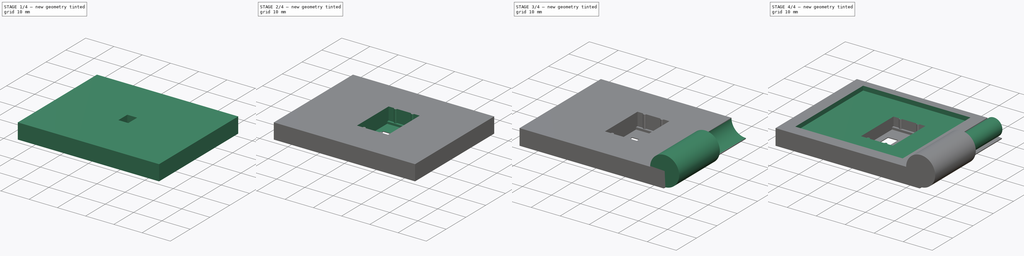
[diagram: build sequence overview — one tinted view per stage of 4, left to right]
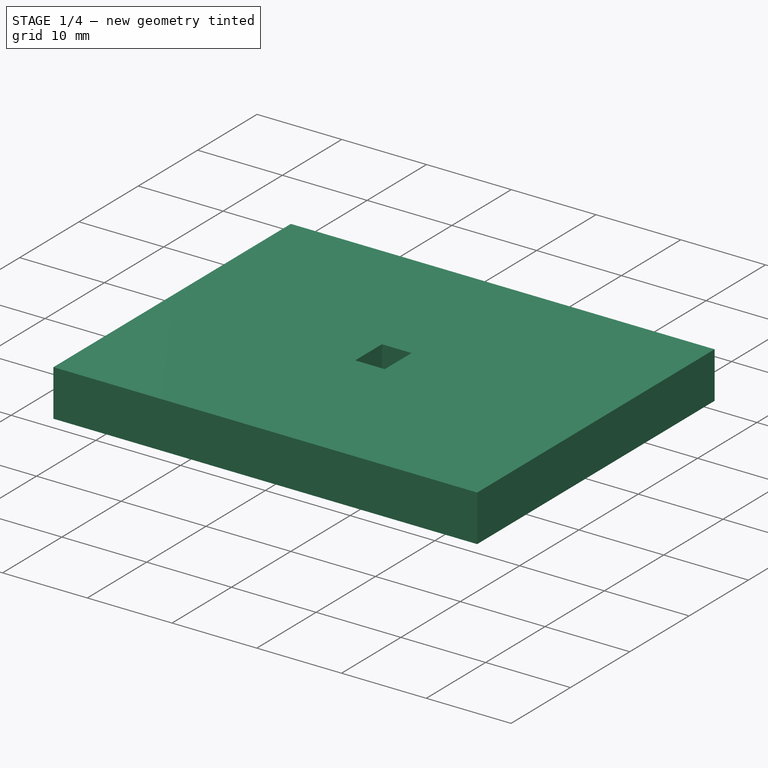
[diagram: stage 1 of 4 — iso view after this stage's code; geometry added in this stage tinted green]
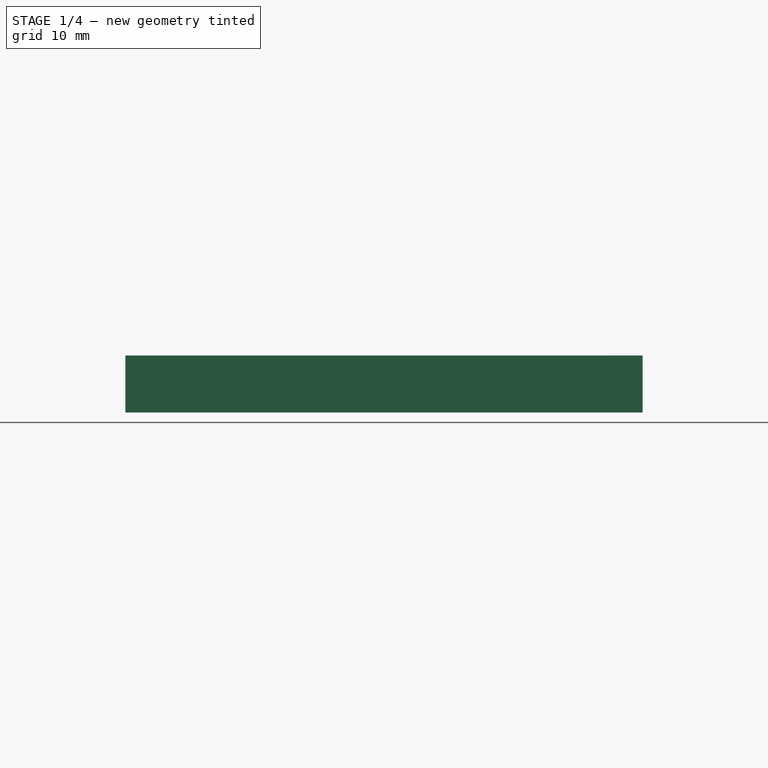
[diagram: stage 1 of 4 — front view after this stage's code; geometry added in this stage tinted green]
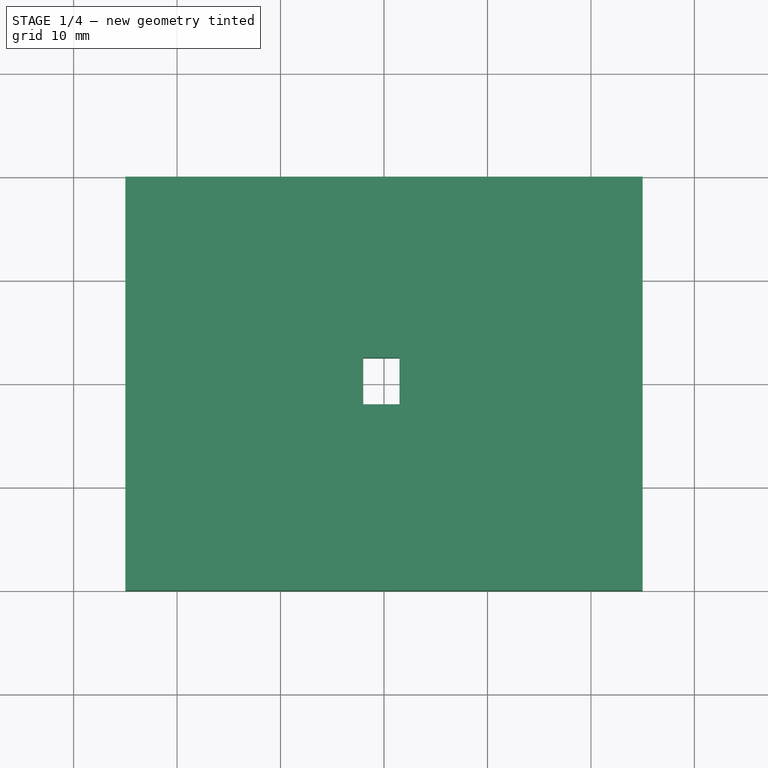
[diagram: stage 1 of 4 — top view after this stage's code; geometry added in this stage tinted green]
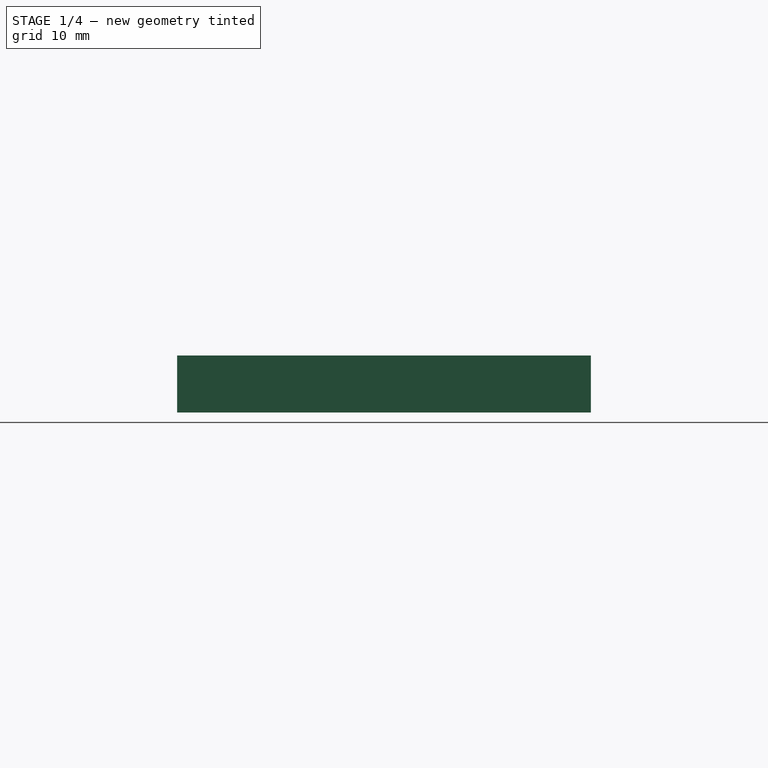
[diagram: stage 1 of 4 — right view after this stage's code; geometry added in this stage tinted green]
FCSTD DOCUMENT  (FreeCAD 0.20R29177 (Git))
Label: Design04
License: All rights reserved
LicenseURL: http://en.wikipedia.org/wiki/All_rights_reserved
objects: Sketcher::SketchObject×9, PartDesign::Pocket×4, PartDesign::Pad×3, PartDesign::Hole×1, PartDesign::Fillet×1, PartDesign::Body×1
note: 28 computed .brp shape members not serialized (recipe doc carries the construction recipe); baked Part::Feature solids carry a one-line shape summary decoded from their .brp

FEATURE [Sketcher::SketchObject] Sketch
  FullyConstrained = false
  MapMode = 5
  Support = -> [XY_Plane]
  sketch-geometry (4):
    g0: LineSegment StartX=-25 StartY=20 StartZ=0 EndX=25 EndY=20 EndZ=0
    g1: LineSegment StartX=25 StartY=20 StartZ=0 EndX=25 EndY=-20 EndZ=0
    g2: LineSegment StartX=25 StartY=-20 StartZ=0 EndX=-25 EndY=-20 EndZ=0
    g3: LineSegment StartX=-25 StartY=-20 StartZ=0 EndX=-25 EndY=20 EndZ=0
  constraints (10):
    c: Coincident(g0,g1)
    c: Coincident(g1,g2)
    c: Coincident(g2,g3)
    c: Coincident(g3,g0)
    c: Horizontal(g2)
    c: Vertical(g1)
    c: DistanceX(g0,g0) = 50
    c: DistanceY(g3,g3) = 40
    c: Symmetric(g0,g0,g-2)
    c: Symmetric(g0,g2,g-1)
FEATURE [PartDesign::Pad] Pad
  AllowMultiFace = false
  Direction = (1,1,1)
  Length = 5.5
  Length2 = 100
  Profile = -> Sketch
  Type = 0
FEATURE [Sketcher::SketchObject] Sketch004
  FullyConstrained = false
  MapMode = 5
  Placement = pos=(0,0,5.5) rot=(0,0,1;0rad)
  Support = -> [Pad]
  sketch-geometry (5):
    g0: LineSegment StartX=-2 StartY=2.5 StartZ=0 EndX=1.5 EndY=2.5 EndZ=0
    g1: LineSegment StartX=1.5 StartY=2.5 StartZ=0 EndX=1.5 EndY=-2 EndZ=0
    g2: LineSegment StartX=1.5 StartY=-2 StartZ=0 EndX=-2 EndY=-2 EndZ=0
    g3: LineSegment StartX=-2 StartY=-2 StartZ=0 EndX=-2 EndY=2.5 EndZ=0
    g4: GeomPoint X=0 Y=0 Z=0
  constraints (13):
    c: Coincident(g0,g1)
    c: Coincident(g1,g2)
    c: Coincident(g2,g3)
    c: Coincident(g3,g0)
    c: Horizontal(g2)
    c: Vertical(g1)
    c: DistanceX(g0,g0) = 3.5
    c: DistanceY(g1,g1) = 4.5
    c: Coincident(g-1,g4)
    c: Vertical(g3)
    c: DistanceX(g0,g4) = 2
    c: DistanceY(g1,g4) = 2
    c: Horizontal(g0)
FEATURE [PartDesign::Pocket] Pocket  label="DisplayActive"
  AllowMultiFace = false
  BaseFeature = -> Pad
  Direction = (1,1,1)
  Length = 5
  Length2 = 100
  Profile = -> Sketch004
  Type = 1
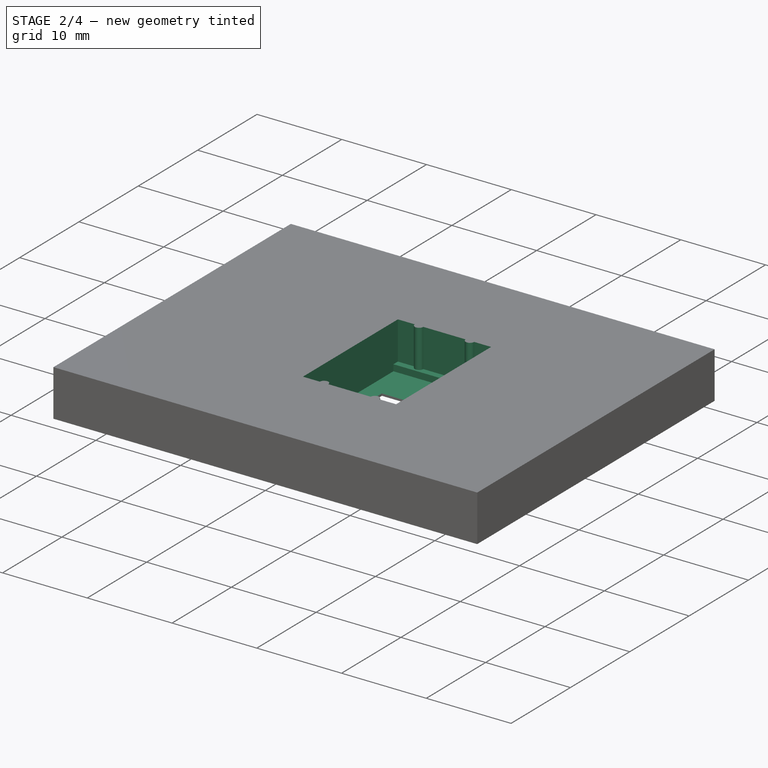
[diagram: stage 2 of 4 — iso view after this stage's code; geometry added in this stage tinted green]
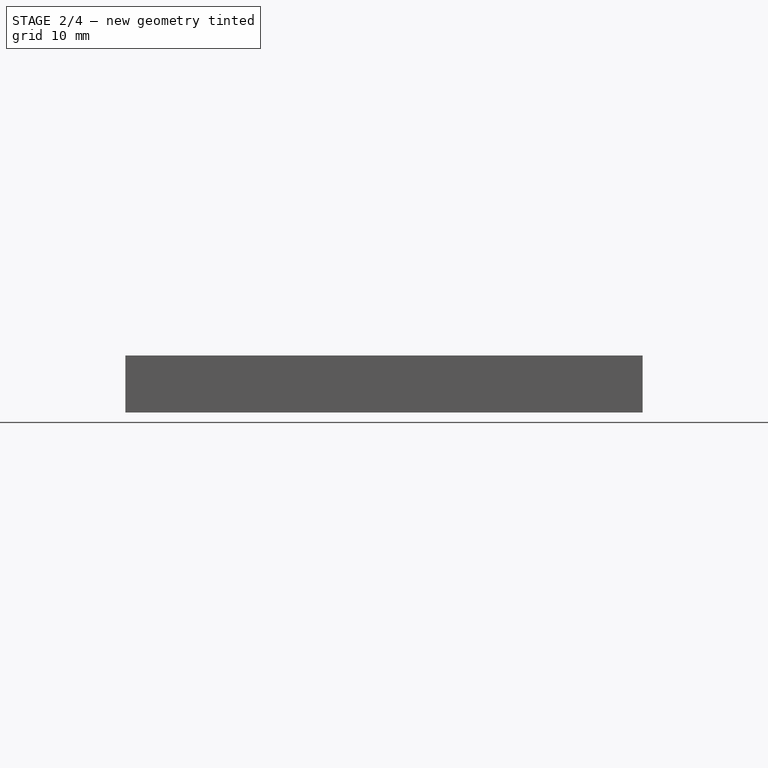
[diagram: stage 2 of 4 — front view after this stage's code; geometry added in this stage tinted green]
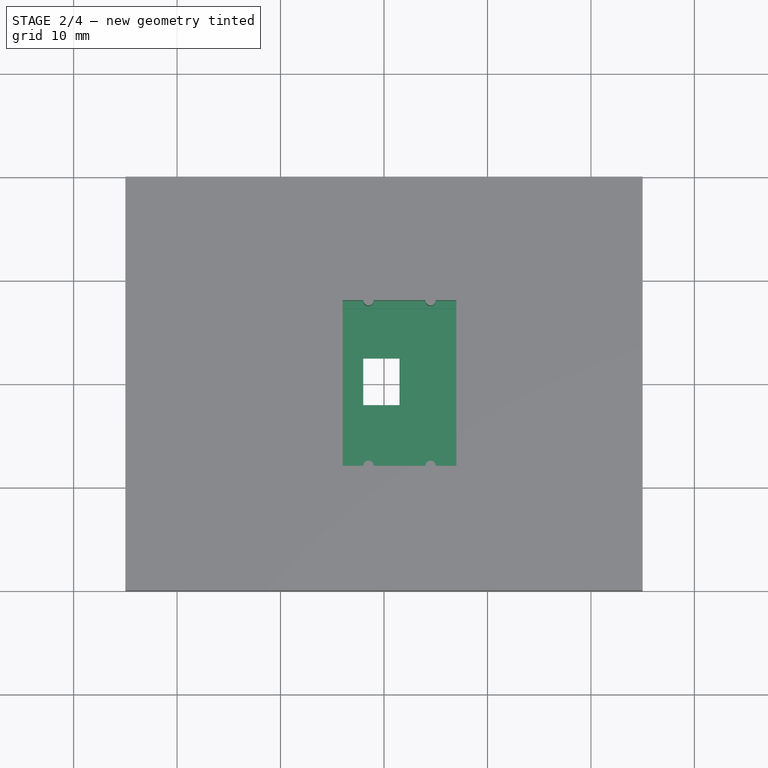
[diagram: stage 2 of 4 — top view after this stage's code; geometry added in this stage tinted green]
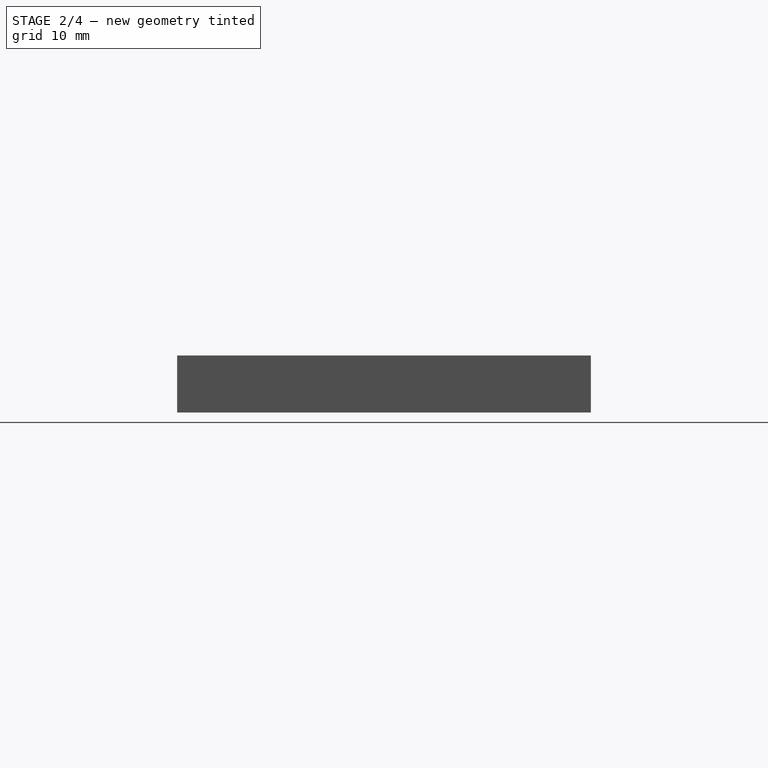
[diagram: stage 2 of 4 — right view after this stage's code; geometry added in this stage tinted green]
FEATURE [Sketcher::SketchObject] Sketch005
  ExternalGeometry = -> [Sketch004]
  FullyConstrained = false
  MapMode = 5
  Placement = pos=(0,0,5.5) rot=(0,0,1;0rad)
  Support = -> [Pocket]
  sketch-geometry (4):
    g0: LineSegment StartX=-4 StartY=7.3 StartZ=0 EndX=7 EndY=7.3 EndZ=0
    g1: LineSegment StartX=7 StartY=7.3 StartZ=0 EndX=7 EndY=-6.7 EndZ=0
    g2: LineSegment StartX=7 StartY=-6.7 StartZ=0 EndX=-4 EndY=-6.7 EndZ=0
    g3: LineSegment StartX=-4 StartY=-6.7 StartZ=0 EndX=-4 EndY=7.3 EndZ=0
  constraints (12):
    c: Coincident(g0,g1)
    c: Coincident(g1,g2)
    c: Coincident(g2,g3)
    c: Coincident(g3,g0)
    c: Horizontal(g0)
    c: Horizontal(g2)
    c: Vertical(g1)
    c: Vertical(g3)
    c: DistanceX(g2,g2) = 11
    c: DistanceY(g1,g1) = 14
    c: DistanceX(g2,g-4) = 2
    c: DistanceY(g-4,g0) = 4.8
FEATURE [PartDesign::Pocket] Pocket001  label="DisplayFull"
  AllowMultiFace = false
  BaseFeature = -> Pocket
  Direction = (1,1,1)
  Length = 5.25
  Length2 = 100
  Profile = -> Sketch005
  Type = 0
FEATURE [Sketcher::SketchObject] Sketch006
  FullyConstrained = true
  MapMode = 5
  Placement = pos=(0,0,5.5) rot=(0,0,1;0rad)
  Support = -> [Pocket001]
FEATURE [Sketcher::SketchObject] Sketch007
  ExternalGeometry = -> [Pocket001]
  FullyConstrained = false
  MapMode = 5
  Placement = pos=(0,0,5.5) rot=(0,0,1;0rad)
  Support = -> [Pocket001]
  sketch-geometry (12):
    g0: LineSegment StartX=-4 StartY=8.05 StartZ=0 EndX=-2 EndY=8.05 EndZ=0
    g1: LineSegment StartX=7 StartY=8.05 StartZ=0 EndX=7 EndY=-7.95 EndZ=0
    g2: LineSegment StartX=7 StartY=-7.95 StartZ=0 EndX=4.9999 EndY=-7.95 EndZ=0
    g3: LineSegment StartX=-4 StartY=-7.95 StartZ=0 EndX=-4 EndY=8.05 EndZ=0
    g4: ArcOfCircle CenterX=-1.5 CenterY=-7.95043 CenterZ=0 NormalX=0 NormalY=0 NormalZ=1 AngleXU=0 Radius=0.5 StartAngle=0.000859488 EndAngle=3.14073
    g5: ArcOfCircle CenterX=4.5 CenterY=-7.95995 CenterZ=0 NormalX=0 NormalY=0 NormalZ=1 AngleXU=0 Radius=0.5 StartAngle=0.0199025 EndAngle=3.12169
    g6: LineSegment StartX=-2 StartY=-7.95 StartZ=0 EndX=-4 EndY=-7.95 EndZ=0
    g7: LineSegment StartX=4.0001 StartY=-7.95 StartZ=0 EndX=-1 EndY=-7.95 EndZ=0
    g8: ArcOfCircle CenterX=-1.5 CenterY=8.05005 CenterZ=0 NormalX=0 NormalY=0 NormalZ=1 AngleXU=0 Radius=0.5 StartAngle=3.14169 EndAngle=6.28309
    g9: ArcOfCircle CenterX=4.5 CenterY=8.04996 CenterZ=0 NormalX=0 NormalY=0 NormalZ=1 AngleXU=0 Radius=0.5 StartAngle=3.14151 EndAngle=6.28327
    g10: LineSegment StartX=-1 StartY=8.05 StartZ=0 EndX=4 EndY=8.05 EndZ=0
    g11: LineSegment StartX=5 StartY=8.05 StartZ=0 EndX=7 EndY=8.05 EndZ=0
  constraints (34):
    c: Coincident(g11,g1)
    c: Coincident(g1,g2)
    c: Coincident(g6,g3)
    c: Coincident(g3,g0)
    c: Horizontal(g0)
    c: Horizontal(g2)
    c: Vertical(g1)
    c: Vertical(g3)
    c: DistanceX(g3,g11) = 11
    c: DistanceX(g3,g-3) = 0
    c: DistanceY(g1,g1) = 16
    c: DistanceY(g3,g-4) = 1.25
    c: Radius(g4) = 0.5
    c: Radius(g5) = 0.5
    c: DistanceX(g3,g4) = 2.5
    c: DistanceX(g5,g1) = 2.5
    c: Coincident(g7,g4)
    c: Coincident(g6,g4)
    c: Tangent(g2,g6)
    c: Coincident(g2,g5)
    c: Coincident(g7,g5)
    c: Tangent(g2,g7)
    c: Radius(g8) = 0.5
    c: Radius(g9) = 0.5
    c: DistanceX(g3,g8) = 2.5
    c: DistanceX(g9,g11) = 2.5
    c: PointOnObject(g9,g0)
    c: PointOnObject(g9,g0)
    c: Coincident(g0,g8)
    c: Coincident(g10,g8)
    c: Tangent(g0,g10)
    c: PointOnObject(g10,g9)
    c: PointOnObject(g11,g9)
    c: Tangent(g10,g11)
FEATURE [PartDesign::Pocket] Pocket002  label="DisplayPCB"
  AllowMultiFace = false
  BaseFeature = -> Pocket001
  Direction = (1,1,1)
  Length = 4.5
  Length2 = 100
  Profile = -> Sketch007
  Type = 0
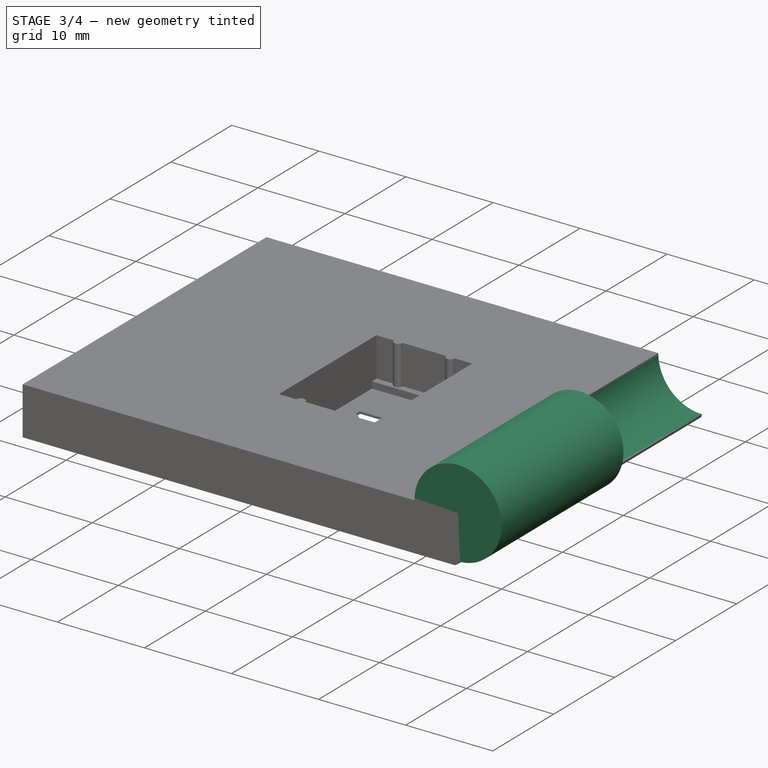
[diagram: stage 3 of 4 — iso view after this stage's code; geometry added in this stage tinted green]
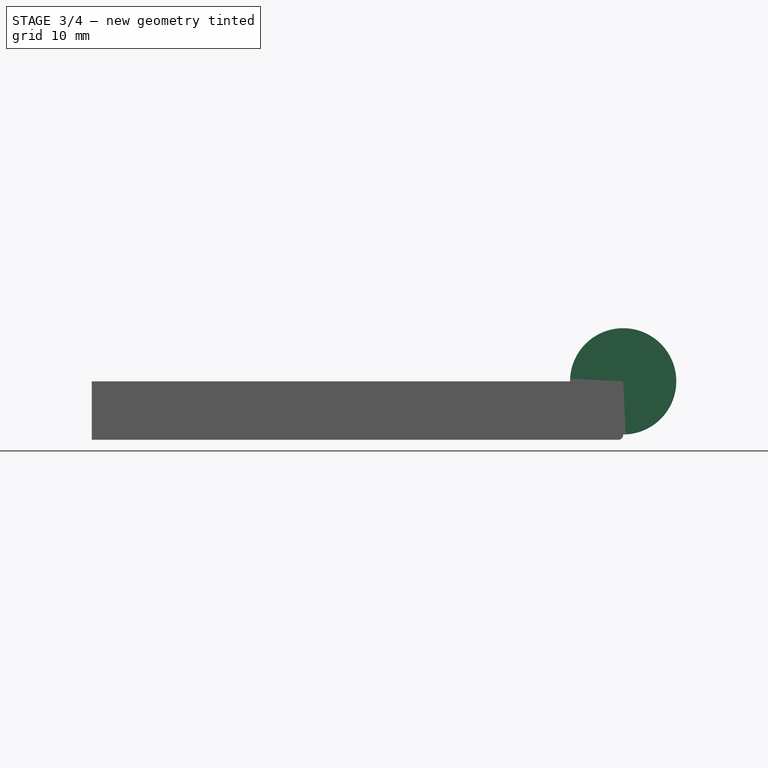
[diagram: stage 3 of 4 — front view after this stage's code; geometry added in this stage tinted green]
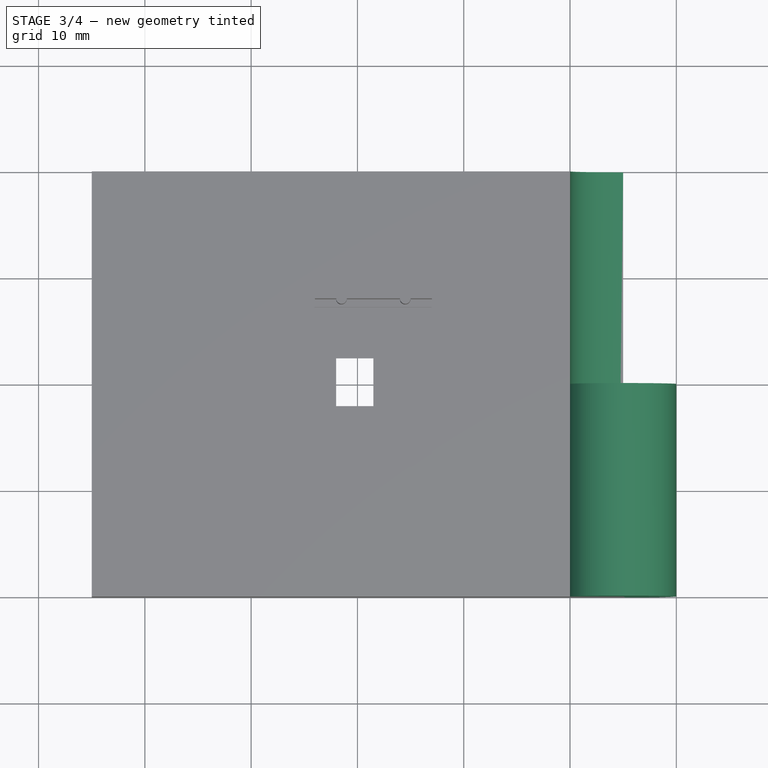
[diagram: stage 3 of 4 — top view after this stage's code; geometry added in this stage tinted green]
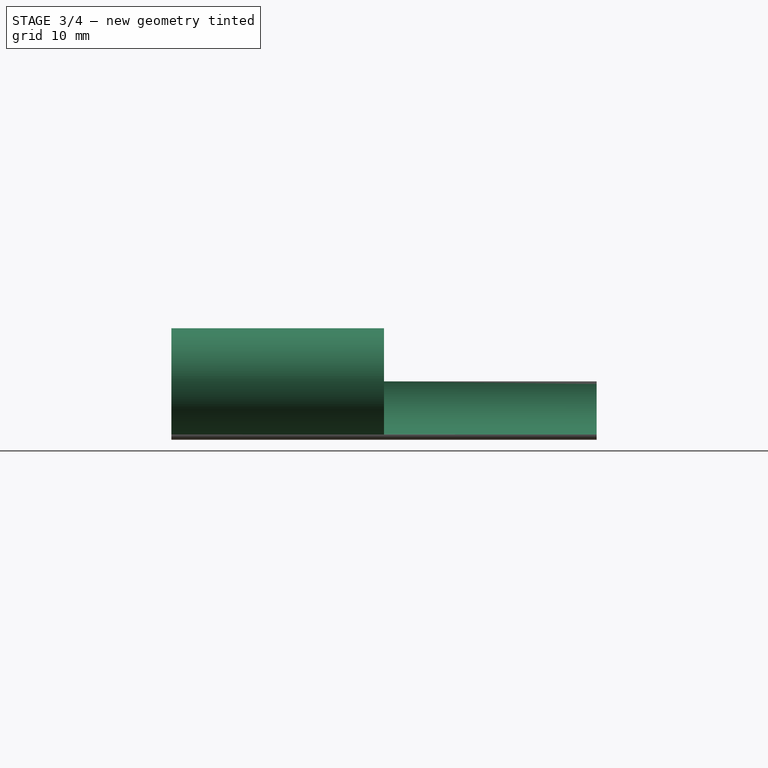
[diagram: stage 3 of 4 — right view after this stage's code; geometry added in this stage tinted green]
FEATURE [Sketcher::SketchObject] Sketch008
  ExternalGeometry = -> [Pocket002]
  FullyConstrained = false
  MapMode = 5
  Placement = pos=(0,-20,0) rot=(1,0,0;1.5708rad)
  Support = -> [Pocket002]
  sketch-geometry (1):
    g0: Circle CenterX=25 CenterY=5.5 CenterZ=0 NormalX=0 NormalY=0 NormalZ=1 AngleXU=0 Radius=5
  constraints (2):
    c: Coincident(g0,g-4)
    c: Radius(g0) = 5
FEATURE [PartDesign::Pad] Pad001  label="HingeMain"
  AllowMultiFace = false
  BaseFeature = -> Pocket002
  Direction = (1,1,1)
  Length = 20
  Length2 = 100
  Profile = -> Sketch008
  Reversed = true
  Type = 0
FEATURE [Sketcher::SketchObject] Sketch009
  ExternalGeometry = -> [Pad001]
  FullyConstrained = false
  MapMode = 5
  Placement = pos=(0,20,0) rot=(0,0.707107,0.707107;3.14159rad)
  Support = -> [Pad001]
  sketch-geometry (1):
    g0: Circle CenterX=-25 CenterY=5.5 CenterZ=0 NormalX=0 NormalY=0 NormalZ=1 AngleXU=0 Radius=5
  constraints (2):
    c: Coincident(g0,g-5)
    c: Radius(g0) = 5
FEATURE [PartDesign::Hole] Hole  label="HingeHole"
  AllowMultiFace = false
  BaseFeature = -> Pad001
  CustomThreadClearance = 0
  Depth = 20
  DepthType = 0
  Diameter = 10
  DrillForDepth = false
  DrillPoint = 0
  DrillPointAngle = 118
  HoleCutCountersinkAngle = 90
  HoleCutCustomValues = false
  HoleCutDepth = 0
  HoleCutDiameter = 0
  HoleCutType = 0
  ModelThread = false
  Profile = -> Sketch009
  Tapered = false
  TaperedAngle = 90
  ThreadClass = 0
  ThreadDepth = 20
  ThreadDepthType = 0
  ThreadDirection = 0
  ThreadFit = 0
  ThreadSize = 0
  ThreadType = 0
  Threaded = false
  UseCustomThreadClearance = false
FEATURE [PartDesign::Fillet] Fillet
  Base = -> Hole [Edge7]
  BaseFeature = -> Hole
  Radius = 0.45
  SupportTransform = false
  UseAllEdges = false
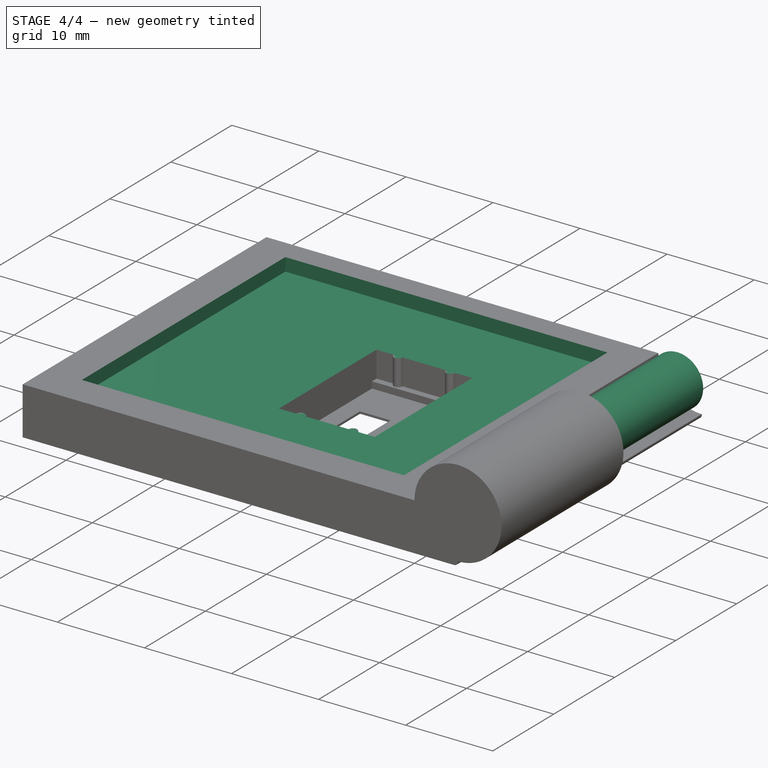
[diagram: stage 4 of 4 — iso view after this stage's code; geometry added in this stage tinted green]
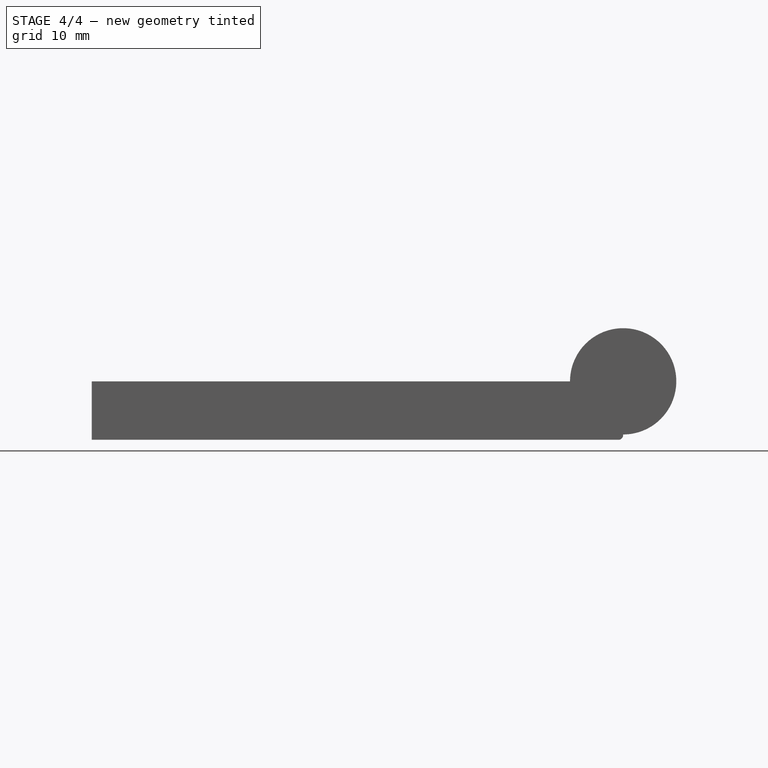
[diagram: stage 4 of 4 — front view after this stage's code; geometry added in this stage tinted green]
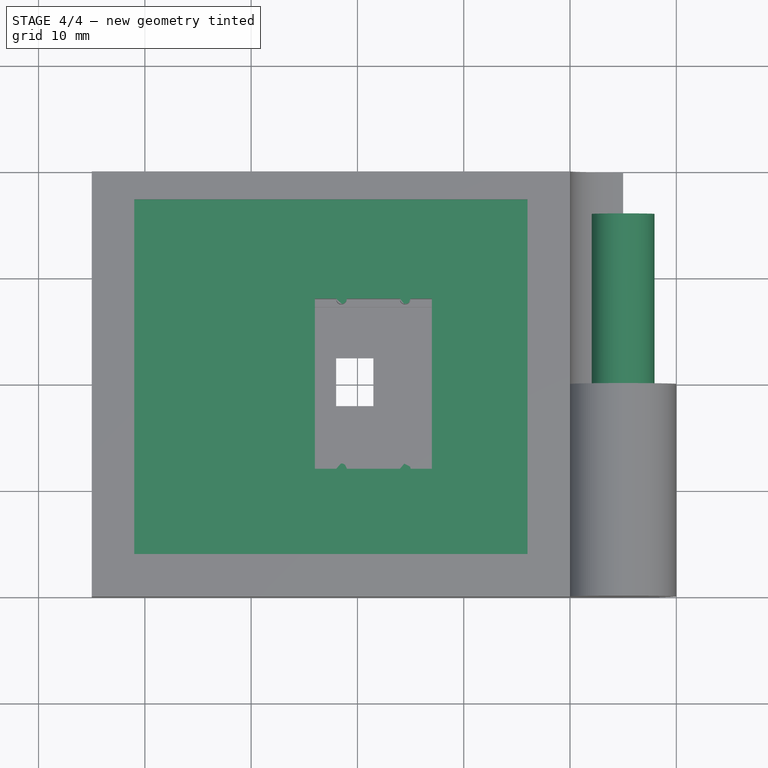
[diagram: stage 4 of 4 — top view after this stage's code; geometry added in this stage tinted green]
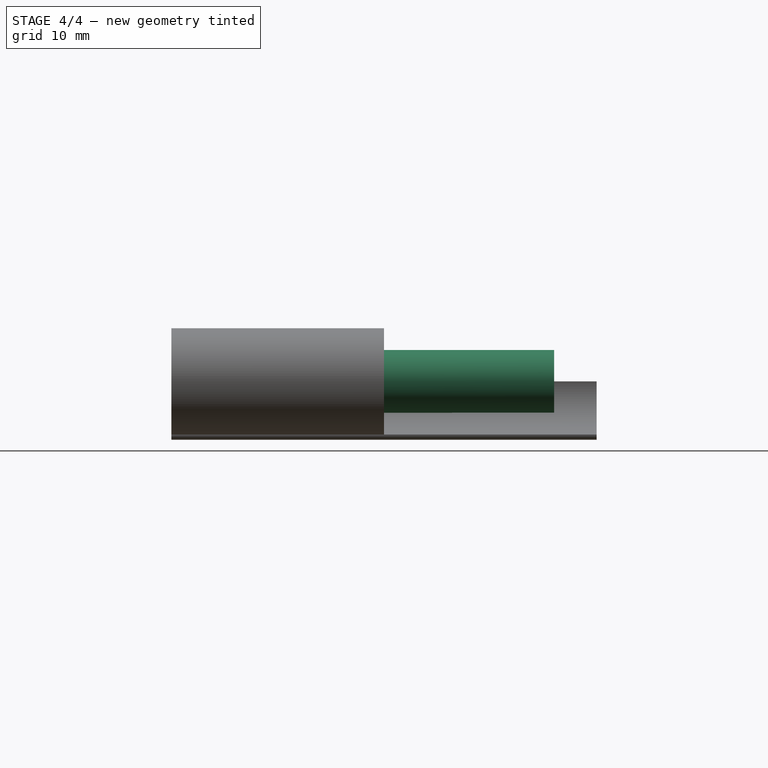
[diagram: stage 4 of 4 — right view after this stage's code; geometry added in this stage tinted green]
FEATURE [Sketcher::SketchObject] Sketch010
  ExternalGeometry = -> [Fillet]
  FullyConstrained = false
  MapMode = 5
  Placement = pos=(0,0,5.5) rot=(0,0,1;0rad)
  Support = -> [Fillet]
  sketch-geometry (4):
    g0: LineSegment StartX=-21 StartY=-16 StartZ=0 EndX=16 EndY=-16 EndZ=0
    g1: LineSegment StartX=16 StartY=-16 StartZ=0 EndX=16 EndY=17.37 EndZ=0
    g2: LineSegment StartX=16 StartY=17.37 StartZ=0 EndX=-21 EndY=17.37 EndZ=0
    g3: LineSegment StartX=-21 StartY=17.37 StartZ=0 EndX=-21 EndY=-16 EndZ=0
  constraints (11):
    c: Coincident(g0,g3)
    c: Coincident(g2,g3)
    c: Coincident(g0,g1)
    c: Coincident(g1,g2)
    c: Horizontal(g2)
    c: Horizontal(g0)
    c: Vertical(g3)
    c: DistanceX(g-4,g2) = 4
    c: DistanceX(g1,g-6) = 4
    c: Vertical(g1)
    c: DistanceY(g-5,g0) = 4
FEATURE [PartDesign::Pocket] Pocket003  label="DisplayFlex"
  AllowMultiFace = false
  BaseFeature = -> Fillet
  Direction = (1,1,1)
  Length = 1.5
  Length2 = 100
  Profile = -> Sketch010
  Type = 0
FEATURE [Sketcher::SketchObject] Sketch012
  ExternalGeometry = -> [Pocket003]
  FullyConstrained = false
  MapMode = 5
  Placement = pos=(0,3.7e-15,0) rot=(0,0.707107,0.707107;3.14159rad)
  Support = -> [Pocket003]
  sketch-geometry (1):
    g0: Circle CenterX=-25 CenterY=5.5 CenterZ=0 NormalX=0 NormalY=0 NormalZ=1 AngleXU=0 Radius=2.95
  constraints (1):
    c: Radius(g0) = 2.95
FEATURE [PartDesign::Pad] Pad002  label="HingeExtension"
  AllowMultiFace = false
  BaseFeature = -> Pocket003
  Direction = (1,1,1)
  Length = 16
  Length2 = 100
  Profile = -> Sketch012
  Type = 0
FEATURE [PartDesign::Body] Body
  Group = -> [Sketch,Pad,Sketch004,Pocket,Sketch005,Pocket001,Sketch006,Sketch007,Pocket002,Sketch008,Pad001,Sketch009,Hole,Fillet,Sketch010,Pocket003,Sketch012,Pad002]
  Origin = -> Origin
  Tip = -> Pad002
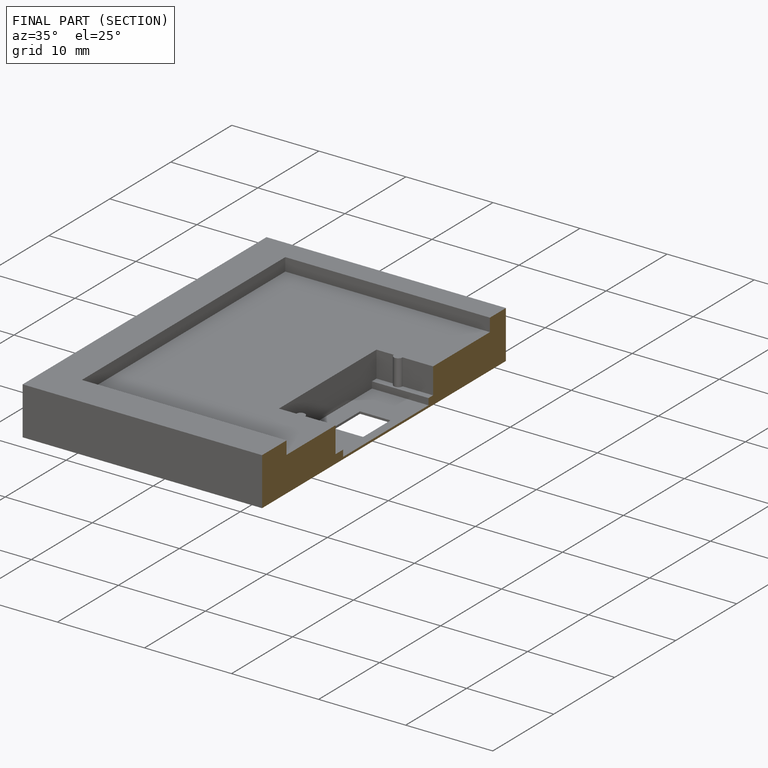
[diagram: finished part — half-section view (interior)]
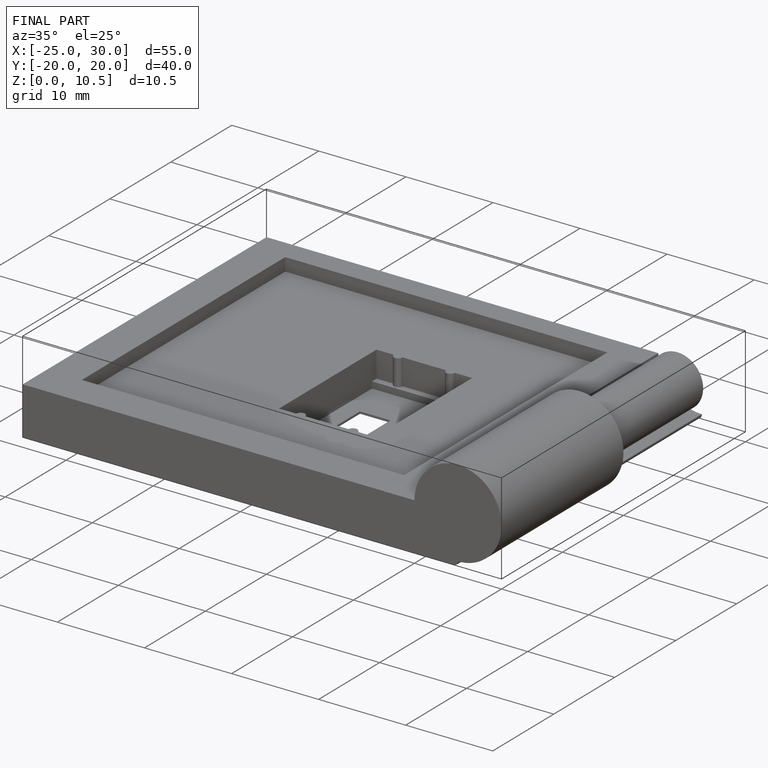
[diagram: finished part — iso view with bounding-box wireframe]
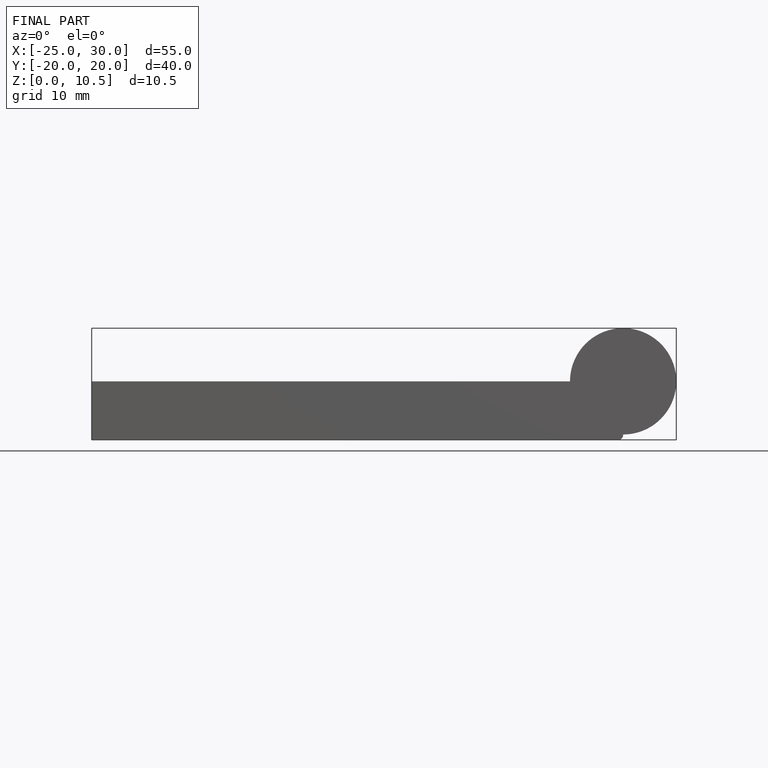
[diagram: finished part — front view with bounding-box wireframe]
